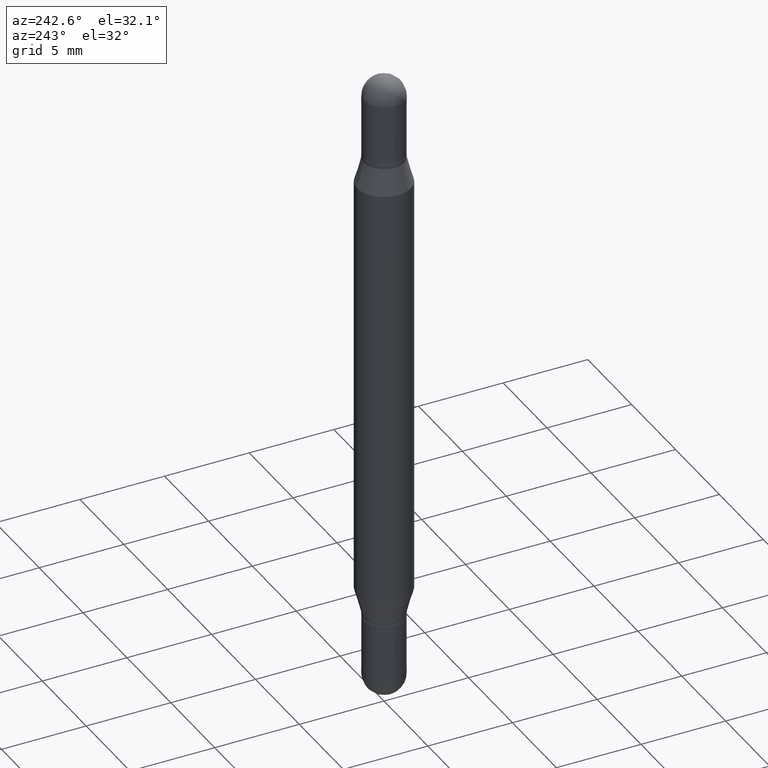
[diagram: clean part render]
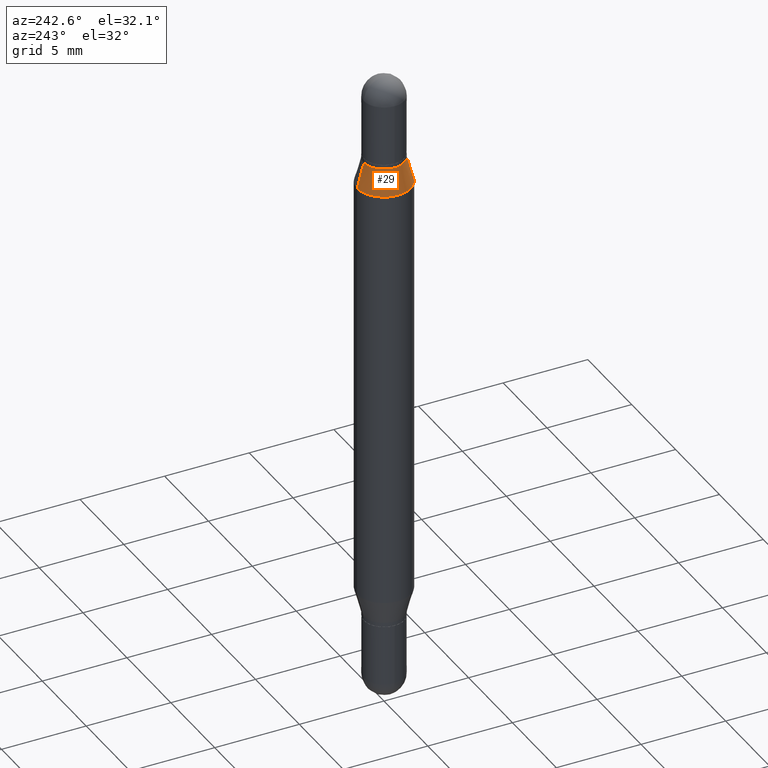
[diagram: same view with one face highlighted and labeled with its STEP entity id]
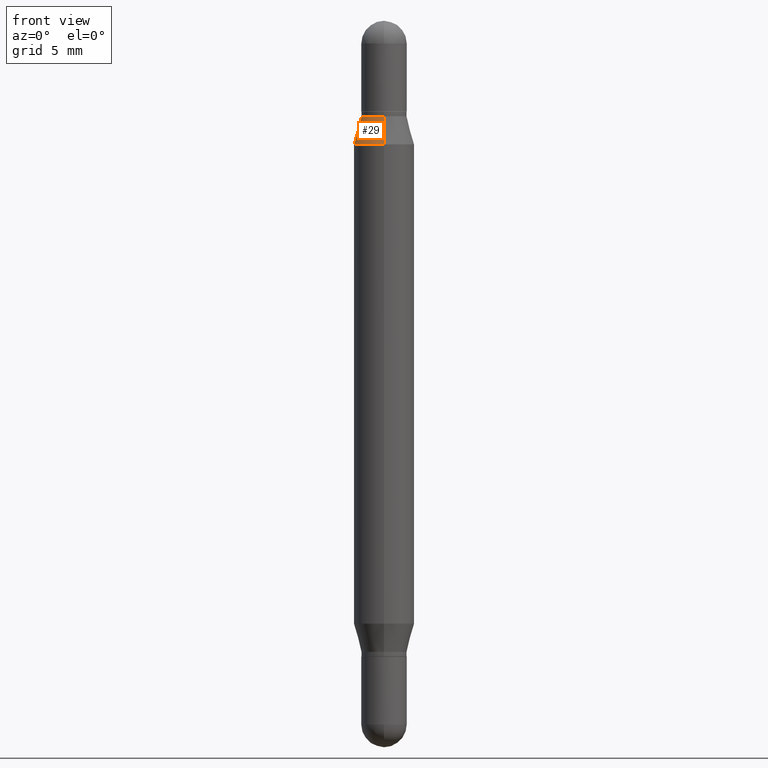
[diagram: same view with one face highlighted and labeled with its STEP entity id]
A machine part, auxiliary view. The second image highlights one B-rep face of the part: STEP entity #29.
A second angle (front view) of the same face is appended — the face is thin or edge-on in the first view.
In plain terms, the highlighted conical surface has half-angle 15 deg.
Its self-contained STEP definition (entity closure, byte-faithful):
#29 = ADVANCED_FACE ( 'NONE', ( #481 ), #442, .T. ) ;
#34 = VECTOR ( 'NONE', #462, 39.37007874015748854 ) ;
#42 = CARTESIAN_POINT ( 'NONE',  ( -4.364351673553612490E-16, -0.06250000000000090206, -0.2552199925980755957 ) ) ;
#62 = EDGE_LOOP ( 'NONE', ( #450, #1087, #147, #85 ) ) ;
#63 = CARTESIAN_POINT ( 'NONE',  ( 3.186358004810098149E-29, -6.945100095912745170E-16, -0.1970000000000001195 ) ) ;
#75 = VERTEX_POINT ( 'NONE', #138 ) ;
#85 = ORIENTED_EDGE ( 'NONE', *, *, #575, .F. ) ;
#138 = CARTESIAN_POINT ( 'NONE',  ( 4.287811248607510938E-16, 0.06249999999999910488, -0.2552199925980759843 ) ) ;
#147 = ORIENTED_EDGE ( 'NONE', *, *, #752, .T. ) ;
#182 = LINE ( 'NONE', #522, #965 ) ;
#217 = DIRECTION ( 'NONE',  ( -6.982962677686265922E-15, -1.000000000000000000, 3.278217592397115862E-15 ) ) ;
#225 = CARTESIAN_POINT ( 'NONE',  ( 3.186358004810098149E-29, -6.945100095912745170E-16, -0.1970000000000001195 ) ) ;
#230 = DIRECTION ( 'NONE',  ( -2.445401385119030572E-29, -3.479517916173795609E-15, -1.000000000000000000 ) ) ;
#231 = CIRCLE ( 'NONE', #427, 0.04689999999999964336 ) ;
#251 = CARTESIAN_POINT ( 'NONE',  ( 3.217573560955143209E-16, 0.04689999999999894947, -0.1970000000000002860 ) ) ;
#268 = AXIS2_PLACEMENT_3D ( 'NONE', #397, #983, #217 ) ;
#280 = VERTEX_POINT ( 'NONE', #42 ) ;
#346 = EDGE_CURVE ( 'NONE', #484, #75, #906, .T. ) ;
#397 = CARTESIAN_POINT ( 'NONE',  ( 3.043986754269143826E-29, -8.970875169157855902E-16, -0.2552199925980758177 ) ) ;
#427 = AXIS2_PLACEMENT_3D ( 'NONE', #63, #1004, #570 ) ;
#435 = CARTESIAN_POINT ( 'NONE',  ( -3.275009495834514884E-16, -0.04690000000000033031, -0.1969999999999999529 ) ) ;
#442 = CONICAL_SURFACE ( 'NONE', #781, 0.04689999999999964336, 0.2617993877991500740 ) ;
#450 = ORIENTED_EDGE ( 'NONE', *, *, #508, .F. ) ;
#453 = DIRECTION ( 'NONE',  ( -6.982962677686265133E-15, -1.000000000000000000, 3.640522379616583431E-15 ) ) ;
#462 = DIRECTION ( 'NONE',  ( 1.775627540710963525E-15, 0.2588190451025179639, -0.9659258262890690894 ) ) ;
#473 = CARTESIAN_POINT ( 'NONE',  ( 3.217573560955141730E-16, 0.04689999999999894947, -0.1970000000000002860 ) ) ;
#481 = FACE_OUTER_BOUND ( 'NONE', #62, .T. ) ;
#484 = VERTEX_POINT ( 'NONE', #251 ) ;
#508 = EDGE_CURVE ( 'NONE', #484, #673, #231, .T. ) ;
#522 = CARTESIAN_POINT ( 'NONE',  ( -3.275009495834514884E-16, -0.04690000000000033031, -0.1969999999999999529 ) ) ;
#548 = CIRCLE ( 'NONE', #268, 0.06250000000000000000 ) ;
#570 = DIRECTION ( 'NONE',  ( -6.982962677686265133E-15, -1.000000000000000000, 3.640522379616583431E-15 ) ) ;
#575 = EDGE_CURVE ( 'NONE', #673, #280, #182, .T. ) ;
#673 = VERTEX_POINT ( 'NONE', #435 ) ;
#752 = EDGE_CURVE ( 'NONE', #75, #280, #548, .T. ) ;
#781 = AXIS2_PLACEMENT_3D ( 'NONE', #225, #230, #453 ) ;
#906 = LINE ( 'NONE', #473, #34 ) ;
#965 = VECTOR ( 'NONE', #1050, 39.37007874015748854 ) ;
#983 = DIRECTION ( 'NONE',  ( 2.445401385119030572E-29, 3.479517916173795609E-15, 1.000000000000000000 ) ) ;
#1004 = DIRECTION ( 'NONE',  ( 2.445401385119030572E-29, 3.479517916173795609E-15, 1.000000000000000000 ) ) ;
#1050 = DIRECTION ( 'NONE',  ( -1.807323732225328562E-15, -0.2588190451025247363, -0.9659258262890673130 ) ) ;
#1087 = ORIENTED_EDGE ( 'NONE', *, *, #346, .T. ) ;